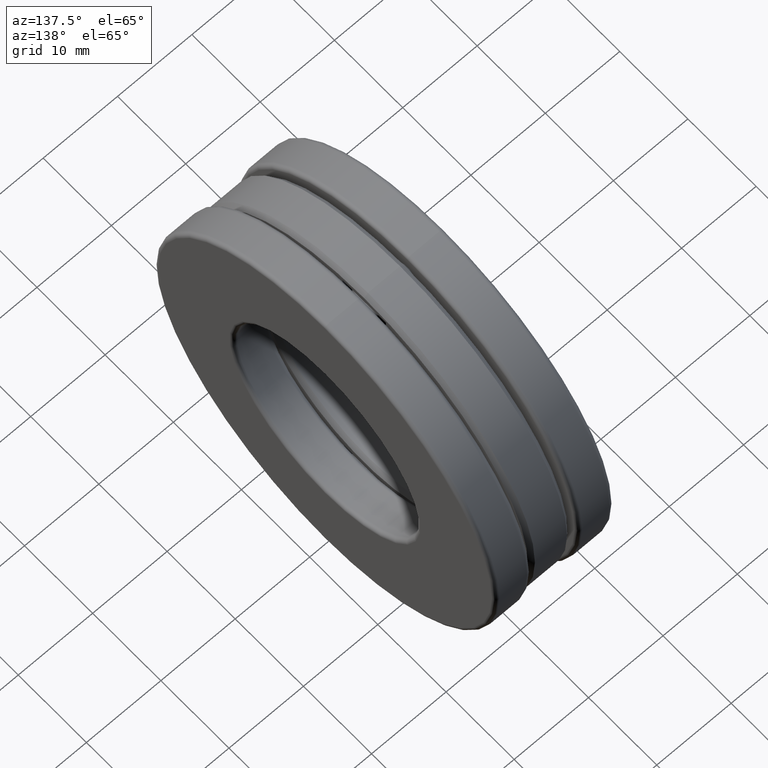
[diagram: clean part render]
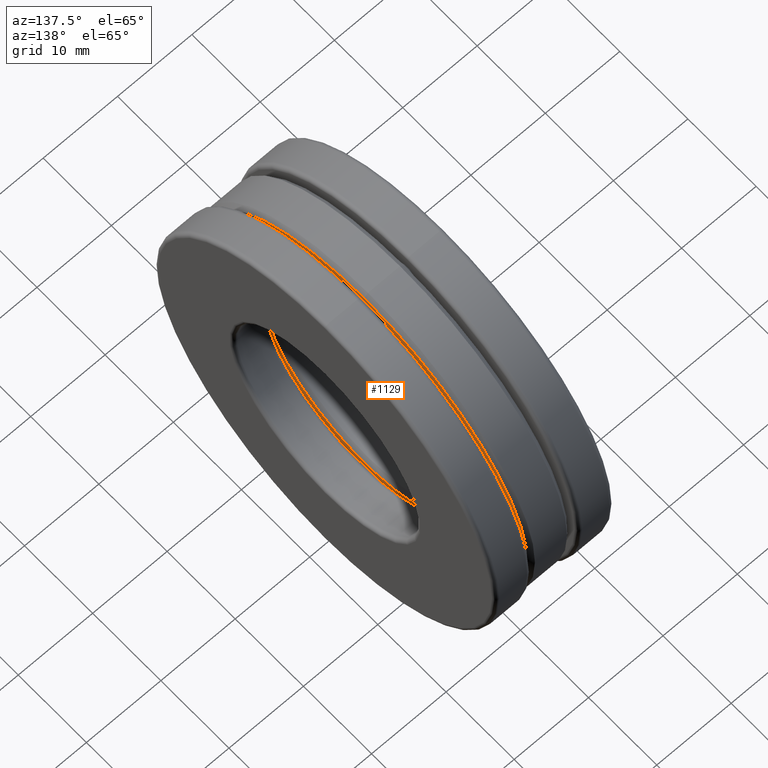
[diagram: same view with one face highlighted and labeled with its STEP entity id]
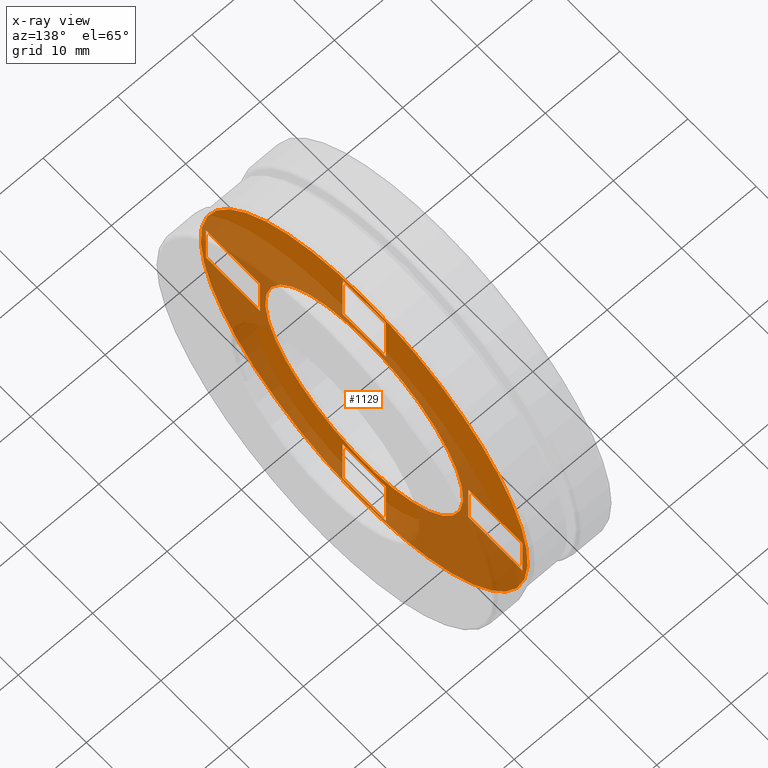
[diagram: x-ray of the same camera — body ghosted, the highlighted face saturated]
A machine part, auxiliary view. The second image highlights one B-rep face of the part: STEP entity #1129.
The next image is the same camera in x-ray: the body ghosted, the highlighted face saturated — about 61% of this face is hidden behind the body in this view.
In plain terms, the highlighted planar face has unit normal (1, 0, 0).
Its self-contained STEP definition (entity closure, byte-faithful):
#11 = CARTESIAN_POINT ( 'NONE',  ( 0.1050000000000000100, 0.0000000000000000000, 0.9443749999999996300 ) ) ;
#26 = EDGE_CURVE ( 'NONE', #305, #507, #1103, .T. ) ;
#45 = DIRECTION ( 'NONE',  ( -1.000000000000000000, -0.0000000000000000000, -0.0000000000000000000 ) ) ;
#49 = ORIENTED_EDGE ( 'NONE', *, *, #354, .T. ) ;
#51 = DIRECTION ( 'NONE',  ( 0.0000000000000000000, -3.546009242908287900E-015, 1.000000000000000000 ) ) ;
#54 = CARTESIAN_POINT ( 'NONE',  ( 0.1050000000000000400, 0.1249999999999979000, 0.6012500000000004000 ) ) ;
#66 = CARTESIAN_POINT ( 'NONE',  ( 0.1050000000000000400, 0.1250000000000063000, -0.6012499999999987300 ) ) ;
#69 = EDGE_CURVE ( 'NONE', #142, #507, #1164, .T. ) ;
#71 = CARTESIAN_POINT ( 'NONE',  ( 0.1050000000000000200, 0.6012500000000000600, 1.642523606190638500E-016 ) ) ;
#96 = ORIENTED_EDGE ( 'NONE', *, *, #347, .T. ) ;
#105 = VERTEX_POINT ( 'NONE', #126 ) ;
#117 = CARTESIAN_POINT ( 'NONE',  ( 0.1050000000000000400, -0.6012499999999999500, -0.1250000000000000000 ) ) ;
#119 = CARTESIAN_POINT ( 'NONE',  ( 0.1050000000000000200, 1.642550356374733500E-017, -0.1250000000000000300 ) ) ;
#123 = CARTESIAN_POINT ( 'NONE',  ( 0.1050000000000000200, 0.1250000000000096000, -0.9143749999999982700 ) ) ;
#126 = CARTESIAN_POINT ( 'NONE',  ( 0.1050000000000000400, 0.0000000000000000000, 0.5712499999999999200 ) ) ;
#142 = VERTEX_POINT ( 'NONE', #144 ) ;
#144 = CARTESIAN_POINT ( 'NONE',  ( 0.1050000000000000200, 0.9143749999999996000, 0.1250000000000000300 ) ) ;
#163 = EDGE_LOOP ( 'NONE', ( #574 ) ) ;
#186 = VERTEX_POINT ( 'NONE', #1377 ) ;
#191 = EDGE_CURVE ( 'NONE', #363, #274, #400, .T. ) ;
#192 = PLANE ( 'NONE',  #1277 ) ;
#198 = VECTOR ( 'NONE', #1382, 39.37007874015748100 ) ;
#205 = DIRECTION ( 'NONE',  ( 0.0000000000000000000, -1.000000000000000000, -5.452790406515501900E-017 ) ) ;
#213 = LINE ( 'NONE', #894, #595 ) ;
#215 = EDGE_CURVE ( 'NONE', #274, #1142, #670, .T. ) ;
#247 = DIRECTION ( 'NONE',  ( 0.0000000000000000000, 0.0000000000000000000, 1.000000000000000000 ) ) ;
#249 = VERTEX_POINT ( 'NONE', #482 ) ;
#257 = FACE_BOUND ( 'NONE', #749, .T. ) ;
#263 = ORIENTED_EDGE ( 'NONE', *, *, #681, .T. ) ;
#269 = CARTESIAN_POINT ( 'NONE',  ( 0.1050000000000000400, -0.6012499999999999500, -0.1250000000000000000 ) ) ;
#274 = VERTEX_POINT ( 'NONE', #54 ) ;
#281 = ORIENTED_EDGE ( 'NONE', *, *, #959, .F. ) ;
#300 = DIRECTION ( 'NONE',  ( 0.0000000000000000000, 2.731847993664263200E-016, -1.000000000000000000 ) ) ;
#305 = VERTEX_POINT ( 'NONE', #604 ) ;
#321 = VECTOR ( 'NONE', #205, 39.37007874015748100 ) ;
#323 = LINE ( 'NONE', #71, #341 ) ;
#326 = VERTEX_POINT ( 'NONE', #1186 ) ;
#337 = LINE ( 'NONE', #1315, #1210 ) ;
#341 = VECTOR ( 'NONE', #300, 39.37007874015748100 ) ;
#347 = EDGE_CURVE ( 'NONE', #954, #699, #1245, .T. ) ;
#354 = EDGE_CURVE ( 'NONE', #326, #1165, #848, .T. ) ;
#356 = CARTESIAN_POINT ( 'NONE',  ( 0.1050000000000000400, 0.0000000000000000000, 0.0000000000000000000 ) ) ;
#358 = VECTOR ( 'NONE', #530, 39.37007874015748100 ) ;
#363 = VERTEX_POINT ( 'NONE', #1308 ) ;
#364 = ORIENTED_EDGE ( 'NONE', *, *, #560, .T. ) ;
#371 = FACE_BOUND ( 'NONE', #784, .T. ) ;
#374 = VECTOR ( 'NONE', #51, 39.37007874015748100 ) ;
#383 = LINE ( 'NONE', #1256, #799 ) ;
#387 = AXIS2_PLACEMENT_3D ( 'NONE', #780, #543, #668 ) ;
#395 = EDGE_CURVE ( 'NONE', #186, #1165, #412, .T. ) ;
#396 = LINE ( 'NONE', #652, #321 ) ;
#400 = LINE ( 'NONE', #1391, #967 ) ;
#412 = LINE ( 'NONE', #1435, #535 ) ;
#422 = ORIENTED_EDGE ( 'NONE', *, *, #191, .F. ) ;
#451 = VECTOR ( 'NONE', #1368, 39.37007874015748100 ) ;
#471 = EDGE_CURVE ( 'NONE', #596, #305, #323, .T. ) ;
#474 = ORIENTED_EDGE ( 'NONE', *, *, #26, .F. ) ;
#482 = CARTESIAN_POINT ( 'NONE',  ( 0.1050000000000000200, -0.1250000000000032200, 0.9143749999999991600 ) ) ;
#486 = LINE ( 'NONE', #117, #451 ) ;
#506 = VERTEX_POINT ( 'NONE', #977 ) ;
#507 = VERTEX_POINT ( 'NONE', #989 ) ;
#518 = ORIENTED_EDGE ( 'NONE', *, *, #215, .F. ) ;
#530 = DIRECTION ( 'NONE',  ( 0.0000000000000000000, -3.546009242908287900E-015, 1.000000000000000000 ) ) ;
#535 = VECTOR ( 'NONE', #845, 39.37007874015748100 ) ;
#537 = CARTESIAN_POINT ( 'NONE',  ( 0.1050000000000000400, 0.1249999999999967900, 0.9143750000000000500 ) ) ;
#543 = DIRECTION ( 'NONE',  ( -1.000000000000000000, -0.0000000000000000000, -0.0000000000000000000 ) ) ;
#560 = EDGE_CURVE ( 'NONE', #249, #1142, #1174, .T. ) ;
#574 = ORIENTED_EDGE ( 'NONE', *, *, #629, .F. ) ;
#576 = CIRCLE ( 'NONE', #807, 0.5712499999999999200 ) ;
#595 = VECTOR ( 'NONE', #686, 39.37007874015748100 ) ;
#596 = VERTEX_POINT ( 'NONE', #678 ) ;
#604 = CARTESIAN_POINT ( 'NONE',  ( 0.1050000000000000400, 0.6012500000000000600, -0.1250000000000000000 ) ) ;
#629 = EDGE_CURVE ( 'NONE', #1450, #1450, #1332, .T. ) ;
#652 = CARTESIAN_POINT ( 'NONE',  ( 0.1050000000000000400, -0.6012499999999999500, -0.1250000000000000000 ) ) ;
#654 = ORIENTED_EDGE ( 'NONE', *, *, #471, .F. ) ;
#657 = ORIENTED_EDGE ( 'NONE', *, *, #735, .T. ) ;
#663 = ORIENTED_EDGE ( 'NONE', *, *, #683, .F. ) ;
#668 = DIRECTION ( 'NONE',  ( 0.0000000000000000000, 0.0000000000000000000, 1.000000000000000000 ) ) ;
#670 = LINE ( 'NONE', #1176, #374 ) ;
#677 = EDGE_CURVE ( 'NONE', #851, #186, #486, .T. ) ;
#678 = CARTESIAN_POINT ( 'NONE',  ( 0.1050000000000000400, 0.6012499999999999500, 0.1250000000000000000 ) ) ;
#680 = DIRECTION ( 'NONE',  ( 0.0000000000000000000, 1.000000000000000000, 3.764666138209559900E-015 ) ) ;
#681 = EDGE_CURVE ( 'NONE', #596, #142, #1101, .T. ) ;
#683 = EDGE_CURVE ( 'NONE', #506, #1033, #213, .T. ) ;
#686 = DIRECTION ( 'NONE',  ( 0.0000000000000000000, 1.052897192059455600E-014, -1.000000000000000000 ) ) ;
#691 = EDGE_CURVE ( 'NONE', #699, #1033, #383, .T. ) ;
#699 = VERTEX_POINT ( 'NONE', #123 ) ;
#707 = VECTOR ( 'NONE', #1212, 39.37007874015748100 ) ;
#708 = CARTESIAN_POINT ( 'NONE',  ( 0.1050000000000000200, 9.609515555602952300E-018, 0.0000000000000000000 ) ) ;
#725 = DIRECTION ( 'NONE',  ( 0.0000000000000000000, 0.0000000000000000000, 1.000000000000000000 ) ) ;
#727 = EDGE_LOOP ( 'NONE', ( #263, #1229, #474, #654 ) ) ;
#733 = VECTOR ( 'NONE', #872, 39.37007874015748100 ) ;
#735 = EDGE_CURVE ( 'NONE', #105, #105, #576, .T. ) ;
#739 = VECTOR ( 'NONE', #1120, 39.37007874015748100 ) ;
#749 = EDGE_LOOP ( 'NONE', ( #1177, #49, #1327, #1215 ) ) ;
#771 = LINE ( 'NONE', #1007, #358 ) ;
#780 = CARTESIAN_POINT ( 'NONE',  ( 0.1050000000000000100, 0.0000000000000000000, 0.0000000000000000000 ) ) ;
#784 = EDGE_LOOP ( 'NONE', ( #657 ) ) ;
#799 = VECTOR ( 'NONE', #998, 39.37007874015748100 ) ;
#807 = AXIS2_PLACEMENT_3D ( 'NONE', #356, #45, #247 ) ;
#845 = DIRECTION ( 'NONE',  ( 0.0000000000000000000, -1.000000000000000000, -5.452790406515503200E-017 ) ) ;
#848 = LINE ( 'NONE', #1317, #931 ) ;
#849 = CARTESIAN_POINT ( 'NONE',  ( 0.1050000000000000400, 0.1250000000000063000, -0.6012499999999987300 ) ) ;
#851 = VERTEX_POINT ( 'NONE', #269 ) ;
#868 = CARTESIAN_POINT ( 'NONE',  ( 0.1050000000000000400, -0.1249999999999904000, -0.9143750000000009400 ) ) ;
#872 = DIRECTION ( 'NONE',  ( 0.0000000000000000000, 1.000000000000000000, 3.491481338843133000E-015 ) ) ;
#890 = DIRECTION ( 'NONE',  ( -0.0000000000000000000, 1.000000000000000000, 5.452790406515501900E-017 ) ) ;
#894 = CARTESIAN_POINT ( 'NONE',  ( 0.1050000000000000400, -0.1249999999999937000, -0.6012500000000012800 ) ) ;
#931 = VECTOR ( 'NONE', #725, 39.37007874015748100 ) ;
#954 = VERTEX_POINT ( 'NONE', #849 ) ;
#959 = EDGE_CURVE ( 'NONE', #954, #506, #337, .T. ) ;
#967 = VECTOR ( 'NONE', #680, 39.37007874015748100 ) ;
#977 = CARTESIAN_POINT ( 'NONE',  ( 0.1050000000000000400, -0.1249999999999937000, -0.6012500000000012800 ) ) ;
#989 = CARTESIAN_POINT ( 'NONE',  ( 0.1050000000000000400, 0.9143749999999996000, -0.1249999999999999900 ) ) ;
#994 = CARTESIAN_POINT ( 'NONE',  ( 0.1050000000000000400, -0.1250000000000032200, 0.9143749999999991600 ) ) ;
#998 = DIRECTION ( 'NONE',  ( 0.0000000000000000000, -1.000000000000000000, -1.047444401652940000E-014 ) ) ;
#1007 = CARTESIAN_POINT ( 'NONE',  ( 0.1050000000000000400, -0.1250000000000021100, 0.6012499999999996200 ) ) ;
#1033 = VERTEX_POINT ( 'NONE', #868 ) ;
#1059 = ORIENTED_EDGE ( 'NONE', *, *, #691, .T. ) ;
#1063 = VECTOR ( 'NONE', #890, 39.37007874015748100 ) ;
#1076 = FACE_BOUND ( 'NONE', #1182, .T. ) ;
#1101 = LINE ( 'NONE', #1122, #1063 ) ;
#1103 = LINE ( 'NONE', #119, #739 ) ;
#1120 = DIRECTION ( 'NONE',  ( -0.0000000000000000000, 1.000000000000000000, 5.452790406515504400E-017 ) ) ;
#1122 = CARTESIAN_POINT ( 'NONE',  ( 0.1050000000000000200, 2.793527547458576800E-018, 0.1249999999999999600 ) ) ;
#1129 = ADVANCED_FACE ( 'NONE', ( #371, #1224, #1279, #1076, #257, #1311 ), #192, .T. ) ;
#1142 = VERTEX_POINT ( 'NONE', #537 ) ;
#1159 = CARTESIAN_POINT ( 'NONE',  ( 0.1050000000000000200, 0.9143749999999996000, 0.0000000000000000000 ) ) ;
#1161 = EDGE_CURVE ( 'NONE', #363, #249, #771, .T. ) ;
#1164 = LINE ( 'NONE', #1159, #198 ) ;
#1165 = VERTEX_POINT ( 'NONE', #1342 ) ;
#1174 = LINE ( 'NONE', #994, #733 ) ;
#1176 = CARTESIAN_POINT ( 'NONE',  ( 0.1050000000000000400, 0.1249999999999979000, 0.6012500000000004000 ) ) ;
#1177 = ORIENTED_EDGE ( 'NONE', *, *, #1178, .T. ) ;
#1178 = EDGE_CURVE ( 'NONE', #851, #326, #396, .T. ) ;
#1182 = EDGE_LOOP ( 'NONE', ( #96, #1059, #663, #281 ) ) ;
#1186 = CARTESIAN_POINT ( 'NONE',  ( 0.1050000000000000200, -0.9143749999999996000, -0.1250000000000000300 ) ) ;
#1194 = DIRECTION ( 'NONE',  ( 0.0000000000000000000, -1.000000000000000000, -1.074762881589582600E-014 ) ) ;
#1210 = VECTOR ( 'NONE', #1194, 39.37007874015748100 ) ;
#1212 = DIRECTION ( 'NONE',  ( 0.0000000000000000000, 1.052897192059455600E-014, -1.000000000000000000 ) ) ;
#1215 = ORIENTED_EDGE ( 'NONE', *, *, #677, .F. ) ;
#1217 = ORIENTED_EDGE ( 'NONE', *, *, #1161, .T. ) ;
#1224 = FACE_OUTER_BOUND ( 'NONE', #163, .T. ) ;
#1226 = DIRECTION ( 'NONE',  ( 0.0000000000000000000, 0.0000000000000000000, -1.000000000000000000 ) ) ;
#1229 = ORIENTED_EDGE ( 'NONE', *, *, #69, .T. ) ;
#1242 = DIRECTION ( 'NONE',  ( 1.000000000000000000, 0.0000000000000000000, 0.0000000000000000000 ) ) ;
#1245 = LINE ( 'NONE', #66, #707 ) ;
#1256 = CARTESIAN_POINT ( 'NONE',  ( 0.1050000000000000400, 0.1250000000000096000, -0.9143749999999982700 ) ) ;
#1277 = AXIS2_PLACEMENT_3D ( 'NONE', #708, #1242, #1226 ) ;
#1279 = FACE_BOUND ( 'NONE', #727, .T. ) ;
#1292 = EDGE_LOOP ( 'NONE', ( #1217, #364, #518, #422 ) ) ;
#1308 = CARTESIAN_POINT ( 'NONE',  ( 0.1050000000000000400, -0.1250000000000021100, 0.6012499999999996200 ) ) ;
#1311 = FACE_BOUND ( 'NONE', #1292, .T. ) ;
#1315 = CARTESIAN_POINT ( 'NONE',  ( 0.1050000000000000400, 0.1250000000000063000, -0.6012499999999987300 ) ) ;
#1317 = CARTESIAN_POINT ( 'NONE',  ( 0.1050000000000000400, -0.9143749999999996000, -0.1250000000000000300 ) ) ;
#1327 = ORIENTED_EDGE ( 'NONE', *, *, #395, .F. ) ;
#1332 = CIRCLE ( 'NONE', #387, 0.9443749999999996300 ) ;
#1342 = CARTESIAN_POINT ( 'NONE',  ( 0.1050000000000000400, -0.9143749999999996000, 0.1249999999999999900 ) ) ;
#1368 = DIRECTION ( 'NONE',  ( 0.0000000000000000000, -2.731847993664263200E-016, 1.000000000000000000 ) ) ;
#1377 = CARTESIAN_POINT ( 'NONE',  ( 0.1050000000000000400, -0.6012500000000000600, 0.1250000000000000000 ) ) ;
#1382 = DIRECTION ( 'NONE',  ( 0.0000000000000000000, 0.0000000000000000000, -1.000000000000000000 ) ) ;
#1391 = CARTESIAN_POINT ( 'NONE',  ( 0.1050000000000000400, -0.1250000000000021100, 0.6012499999999996200 ) ) ;
#1435 = CARTESIAN_POINT ( 'NONE',  ( 0.1050000000000000400, -0.6012500000000000600, 0.1250000000000000000 ) ) ;
#1450 = VERTEX_POINT ( 'NONE', #11 ) ;